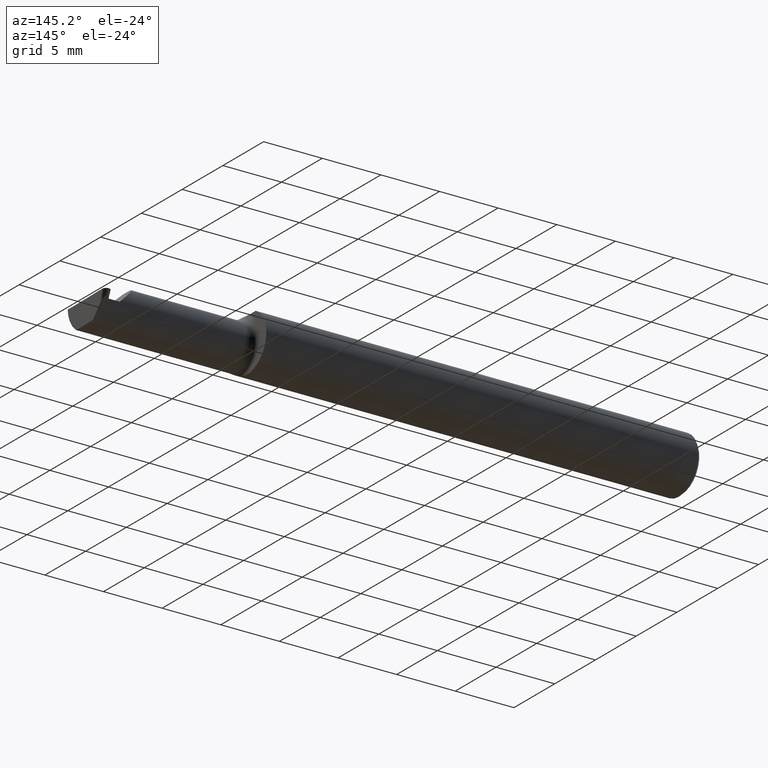
[diagram: clean part render]
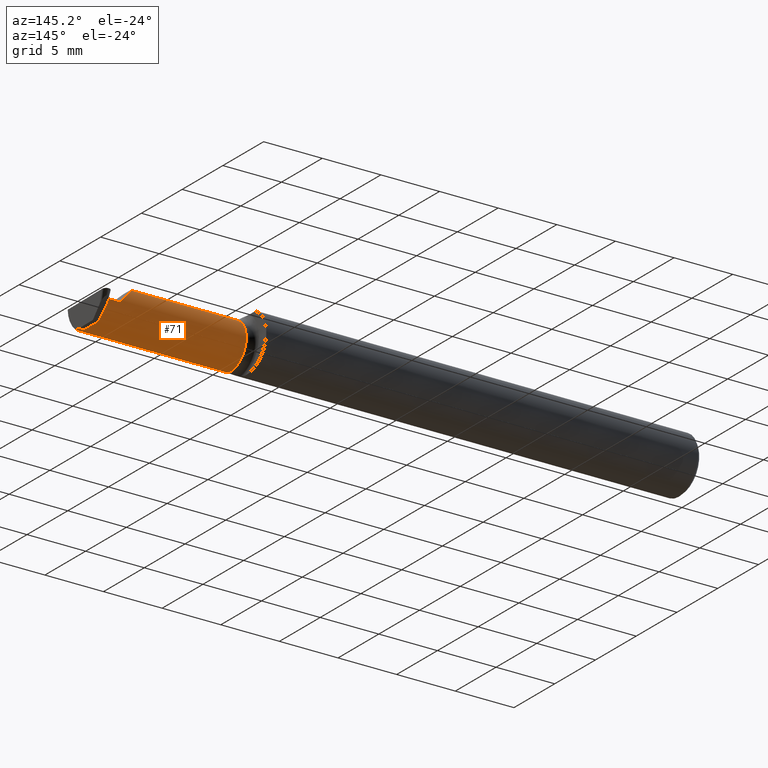
[diagram: same view with one face highlighted and labeled with its STEP entity id]
A machine part, auxiliary view. The second image highlights one B-rep face of the part: STEP entity #71.
In plain terms, the highlighted cylindrical surface (edge-blend (fillet) strip) has radius 1.905 mm, axis along (-1, -0, -0).
Its self-contained STEP definition (entity closure, byte-faithful):
#1 = CARTESIAN_POINT ( 'NONE',  ( 1.459999999999999964, 0.03221730376948610253, -0.005231735530819335914 ) ) ;
#5 = CARTESIAN_POINT ( 'NONE',  ( 1.459999999999999964, -0.04260000000000005449, 0.000000000000000000 ) ) ;
#38 = ORIENTED_EDGE ( 'NONE', *, *, #214, .T. ) ;
#42 = VECTOR ( 'NONE', #328, 39.37007874015748143 ) ;
#50 = CARTESIAN_POINT ( 'NONE',  ( 1.969065783658063173, 0.03221730376948680336, -0.005231735530809635340 ) ) ;
#51 = ORIENTED_EDGE ( 'NONE', *, *, #85, .F. ) ;
#57 = FACE_OUTER_BOUND ( 'NONE', #158, .T. ) ;
#62 = CARTESIAN_POINT ( 'NONE',  ( 1.969126682401567408, 0.03227820251299119703, -0.003487823687206417778 ) ) ;
#65 = CARTESIAN_POINT ( 'NONE',  ( 1.729736605000000038, -0.05810704225352107677, -0.07337936794867833123 ) ) ;
#67 = ORIENTED_EDGE ( 'NONE', *, *, #146, .F. ) ;
#71 = ADVANCED_FACE ( 'NONE', ( #57 ), #536, .T. ) ;
#74 = CARTESIAN_POINT ( 'NONE',  ( 1.995192704155888785, -0.04781600192481509637, -0.07500000000000006661 ) ) ;
#84 = VERTEX_POINT ( 'NONE', #205 ) ;
#85 = EDGE_CURVE ( 'NONE', #441, #192, #591, .T. ) ;
#86 = CARTESIAN_POINT ( 'NONE',  ( 1.910000000000000142, 0.03239999999999998437, 6.613092715395735816E-17 ) ) ;
#88 = CARTESIAN_POINT ( 'NONE',  ( 1.995069675717878299, -0.05810704225352106983, -0.07337936794867833123 ) ) ;
#91 = VECTOR ( 'NONE', #514, 39.37007874015748143 ) ;
#95 = ORIENTED_EDGE ( 'NONE', *, *, #112, .F. ) ;
#101 = VERTEX_POINT ( 'NONE', #499 ) ;
#106 = LINE ( 'NONE', #596, #42 ) ;
#109 = CARTESIAN_POINT ( 'NONE',  ( 1.975446786689251333, 0.03221730376948541558, -0.005231735530809524318 ) ) ;
#112 = EDGE_CURVE ( 'NONE', #371, #441, #313, .T. ) ;
#113 = VERTEX_POINT ( 'NONE', #154 ) ;
#115 = CARTESIAN_POINT ( 'NONE',  ( 1.969248479888576320, 0.03239999999999999825, 0.000000000000000000 ) ) ;
#123 = VERTEX_POINT ( 'NONE', #652 ) ;
#135 = EDGE_CURVE ( 'NONE', #123, #371, #106, .T. ) ;
#139 = DIRECTION ( 'NONE',  ( 1.000000000000000000, 3.318744227790140248E-17, 0.000000000000000000 ) ) ;
#146 = EDGE_CURVE ( 'NONE', #192, #322, #442, .T. ) ;
#152 = ORIENTED_EDGE ( 'NONE', *, *, #223, .T. ) ;
#154 = CARTESIAN_POINT ( 'NONE',  ( 1.484999999999999876, -0.05810704225352104207, 0.07337936794867834511 ) ) ;
#157 = DIRECTION ( 'NONE',  ( -1.000000000000000000, -3.318744227790140248E-17, -0.000000000000000000 ) ) ;
#158 = EDGE_LOOP ( 'NONE', ( #152, #502, #429, #38, #666, #67, #51, #95, #629, #618 ) ) ;
#173 = LINE ( 'NONE', #65, #91 ) ;
#192 = VERTEX_POINT ( 'NONE', #50 ) ;
#205 = CARTESIAN_POINT ( 'NONE',  ( 1.484999999999999876, -0.05810704225352104901, -0.07337936794867834511 ) ) ;
#210 = CARTESIAN_POINT ( 'NONE',  ( 1.729736605000000038, -0.05810704225352107677, 0.07337936794867833123 ) ) ;
#211 = AXIS2_PLACEMENT_3D ( 'NONE', #361, #637, #580 ) ;
#213 = CARTESIAN_POINT ( 'NONE',  ( 1.910000000000000142, 0.03239999999999998437, 6.613092715395735816E-17 ) ) ;
#214 = EDGE_CURVE ( 'NONE', #101, #460, #270, .T. ) ;
#223 = EDGE_CURVE ( 'NONE', #391, #84, #173, .T. ) ;
#242 = LINE ( 'NONE', #422, #243 ) ;
#243 = VECTOR ( 'NONE', #139, 39.37007874015748143 ) ;
#260 = DIRECTION ( 'NONE',  ( 0.000000000000000000, -1.000000000000000000, 0.000000000000000000 ) ) ;
#264 = CARTESIAN_POINT ( 'NONE',  ( 1.978015756548945348, -0.04260000000000003367, -0.07500000000000002498 ) ) ;
#268 = CARTESIAN_POINT ( 'NONE',  ( 1.969065783658063173, 0.03221730376948680336, -0.005231735530809635340 ) ) ;
#270 =( BOUNDED_CURVE ( )  B_SPLINE_CURVE ( 3, ( #501, #448, #673, #213 ),
 .UNSPECIFIED., .F., .T. ) 
 B_SPLINE_CURVE_WITH_KNOTS ( ( 4, 4 ),
 ( 6.074922494366330916, 7.853981633974482790 ),
 .UNSPECIFIED. ) 
 CURVE ( )  GEOMETRIC_REPRESENTATION_ITEM ( )  RATIONAL_B_SPLINE_CURVE ( ( 1.000000000000000000, 0.7531850099525148057, 0.7531850099525148057, 1.000000000000000000 ) ) 
 REPRESENTATION_ITEM ( '' )  );
#290 = CARTESIAN_POINT ( 'NONE',  ( 1.995283749808152374, -0.04259999999999973530, -0.07500000000000002498 ) ) ;
#313 =( BOUNDED_CURVE ( )  B_SPLINE_CURVE ( 3, ( #264, #492, #438, #109 ),
 .UNSPECIFIED., .F., .T. ) 
 B_SPLINE_CURVE_WITH_KNOTS ( ( 4, 4 ),
 ( 3.176499238629678867, 4.677482395344799038 ),
 .UNSPECIFIED. ) 
 CURVE ( )  GEOMETRIC_REPRESENTATION_ITEM ( )  RATIONAL_B_SPLINE_CURVE ( ( 1.000000000000000000, 0.8209024677461143060, 0.8209024677461143060, 1.000000000000000000 ) ) 
 REPRESENTATION_ITEM ( '' )  );
#322 = VERTEX_POINT ( 'NONE', #115 ) ;
#328 = DIRECTION ( 'NONE',  ( -1.000000000000000000, -0.000000000000000000, -0.000000000000000000 ) ) ;
#340 = EDGE_CURVE ( 'NONE', #391, #123, #392, .T. ) ;
#342 = CIRCLE ( 'NONE', #211, 0.07500000000000003886 ) ;
#361 = CARTESIAN_POINT ( 'NONE',  ( 1.484999999999999876, -0.04260000000000005449, 0.000000000000000000 ) ) ;
#363 = CARTESIAN_POINT ( 'NONE',  ( 1.975446786689251333, 0.03221730376948541558, -0.005231735530809524318 ) ) ;
#364 = EDGE_CURVE ( 'NONE', #460, #322, #242, .T. ) ;
#371 = VERTEX_POINT ( 'NONE', #416 ) ;
#391 = VERTEX_POINT ( 'NONE', #88 ) ;
#392 =( BOUNDED_CURVE ( )  B_SPLINE_CURVE ( 3, ( #507, #397, #74, #290 ),
 .UNSPECIFIED., .F., .F. ) 
 B_SPLINE_CURVE_WITH_KNOTS ( ( 4, 4 ),
 ( 0.2552020043920343317, 0.4634648172052940329 ),
 .UNSPECIFIED. ) 
 CURVE ( )  GEOMETRIC_REPRESENTATION_ITEM ( )  RATIONAL_B_SPLINE_CURVE ( ( 1.000000000000000000, 0.9963888149483994816, 0.9963888149483994816, 1.000000000000000000 ) ) 
 REPRESENTATION_ITEM ( '' )  );
#397 = CARTESIAN_POINT ( 'NONE',  ( 1.995121087504817758, -0.05300374992736048979, -0.07445783144524577291 ) ) ;
#416 = CARTESIAN_POINT ( 'NONE',  ( 1.978015756548945348, -0.04260000000000003367, -0.07500000000000002498 ) ) ;
#422 = CARTESIAN_POINT ( 'NONE',  ( 1.459999999999999964, 0.03239999999999997743, 6.613092715395735816E-17 ) ) ;
#429 = ORIENTED_EDGE ( 'NONE', *, *, #555, .T. ) ;
#430 = EDGE_CURVE ( 'NONE', #113, #84, #342, .T. ) ;
#432 = DIRECTION ( 'NONE',  ( -1.000000000000000000, -3.318744227790140248E-17, -0.000000000000000000 ) ) ;
#438 = CARTESIAN_POINT ( 'NONE',  ( 1.976921122959496957, 0.02931965133412149649, -0.04667009593691546360 ) ) ;
#441 = VERTEX_POINT ( 'NONE', #363 ) ;
#442 = B_SPLINE_CURVE_WITH_KNOTS ( 'NONE', 3,
 ( #268, #62, #539, #600 ),
 .UNSPECIFIED., .F., .F.,
 ( 4, 4 ),
 ( 0.000000000000000000, 1.000000000000000000 ),
 .UNSPECIFIED. ) ;
#443 = DIRECTION ( 'NONE',  ( 1.000000000000000000, 3.318744227790140248E-17, 0.000000000000000000 ) ) ;
#448 = CARTESIAN_POINT ( 'NONE',  ( 1.825958805822864628, -0.007655250284932078528, 0.08404119417713461215 ) ) ;
#460 = VERTEX_POINT ( 'NONE', #86 ) ;
#492 = CARTESIAN_POINT ( 'NONE',  ( 1.977964271591899248, -0.001060451341131625784, -0.07500000000000003886 ) ) ;
#499 = CARTESIAN_POINT ( 'NONE',  ( 1.836620632051321200, -0.05810704225352102820, 0.07337936794867834511 ) ) ;
#501 = CARTESIAN_POINT ( 'NONE',  ( 1.836620632051321200, -0.05810704225352102820, 0.07337936794867834511 ) ) ;
#502 = ORIENTED_EDGE ( 'NONE', *, *, #430, .F. ) ;
#507 = CARTESIAN_POINT ( 'NONE',  ( 1.995069675717878299, -0.05810704225352106983, -0.07337936794867833123 ) ) ;
#514 = DIRECTION ( 'NONE',  ( -1.000000000000000000, -3.318744227790140248E-17, -0.000000000000000000 ) ) ;
#536 = CYLINDRICAL_SURFACE ( 'NONE', #630, 0.07500000000000003886 ) ;
#539 = CARTESIAN_POINT ( 'NONE',  ( 1.969187581145071864, 0.03233910125649559764, -0.001743911843603208889 ) ) ;
#555 = EDGE_CURVE ( 'NONE', #113, #101, #598, .T. ) ;
#575 = VECTOR ( 'NONE', #443, 39.37007874015748143 ) ;
#580 = DIRECTION ( 'NONE',  ( 0.000000000000000000, -1.000000000000000000, 0.000000000000000000 ) ) ;
#591 = LINE ( 'NONE', #1, #640 ) ;
#596 = CARTESIAN_POINT ( 'NONE',  ( 2.115884466375952400, -0.04259999999999973530, -0.07500000000000002498 ) ) ;
#598 = LINE ( 'NONE', #210, #575 ) ;
#600 = CARTESIAN_POINT ( 'NONE',  ( 1.969248479888576320, 0.03239999999999999825, 0.000000000000000000 ) ) ;
#618 = ORIENTED_EDGE ( 'NONE', *, *, #340, .F. ) ;
#629 = ORIENTED_EDGE ( 'NONE', *, *, #135, .F. ) ;
#630 = AXIS2_PLACEMENT_3D ( 'NONE', #5, #157, #260 ) ;
#637 = DIRECTION ( 'NONE',  ( -1.000000000000000000, -3.318744227790140248E-17, -0.000000000000000000 ) ) ;
#640 = VECTOR ( 'NONE', #432, 39.37007874015748143 ) ;
#652 = CARTESIAN_POINT ( 'NONE',  ( 1.995283749808152374, -0.04259999999999973530, -0.07500000000000002498 ) ) ;
#666 = ORIENTED_EDGE ( 'NONE', *, *, #364, .T. ) ;
#673 = CARTESIAN_POINT ( 'NONE',  ( 1.858433946715231100, 0.03239999999999999131, 0.05156605328476845940 ) ) ;